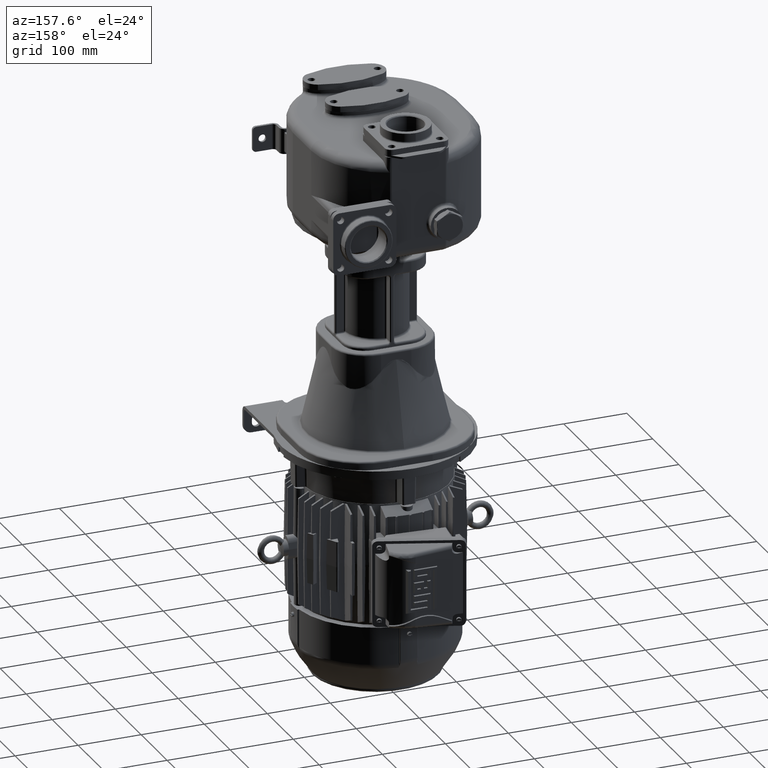
[diagram: clean part render]
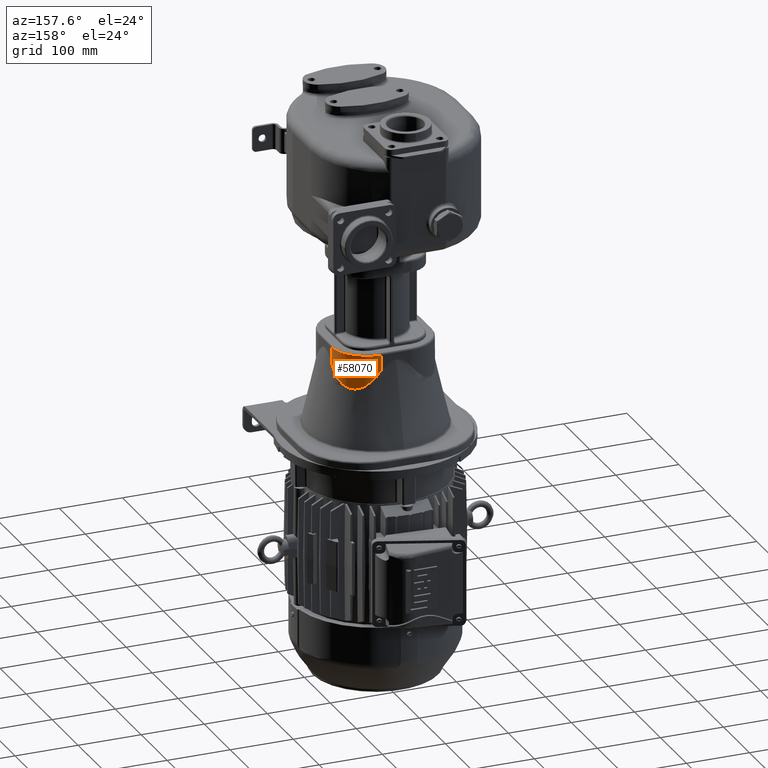
[diagram: same view with one face highlighted and labeled with its STEP entity id]
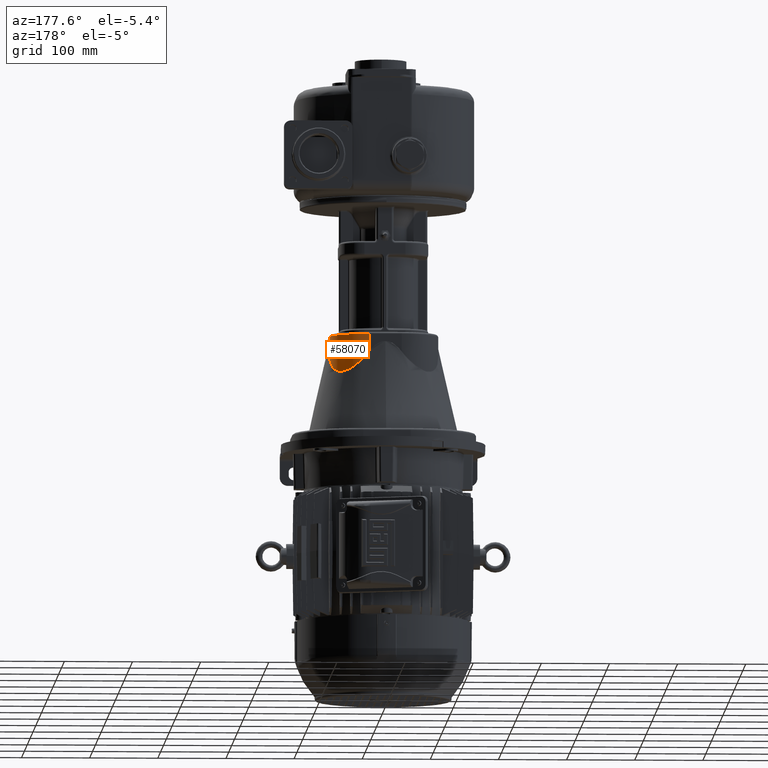
[diagram: same view with one face highlighted and labeled with its STEP entity id]
A machine part, auxiliary view. The second image highlights one B-rep face of the part: STEP entity #58070.
A second angle (auxiliary view) of the same face is appended — the face is thin or edge-on in the first view.
In plain terms, the highlighted cylindrical surface (partial cylindrical patch) has radius 56 mm, axis along (0, 0, 1).
Its self-contained STEP definition (entity closure, byte-faithful):
#3459=CARTESIAN_POINT('',(2.4E1,2.109999999998E2,-2.919786503790E2));
#3461=DIRECTION('',(0.E0,-8.758990728627E-12,-1.E0));
#3462=VECTOR('',#3461,2.547865037899E1);
#3463=CARTESIAN_POINT('',(2.4E1,2.11E2,-2.665E2));
#3464=LINE('',#3463,#3462);
#3884=CARTESIAN_POINT('',(7.999999999979E1,1.55E2,-2.919786503790E2));
#3961=DIRECTION('',(8.331750095787E-12,0.E0,1.E0));
#3962=VECTOR('',#3961,2.547865037899E1);
#3963=CARTESIAN_POINT('',(7.999999999979E1,1.55E2,-2.919786503790E2));
#3964=LINE('',#3963,#3962);
#3975=CARTESIAN_POINT('',(2.4E1,2.109999999998E2,-2.919786503790E2));
#3976=CARTESIAN_POINT('',(2.444192718825E1,2.109999999982E2,-2.925388554976E2));
#3977=CARTESIAN_POINT('',(2.531880095320E1,2.109895306220E2,-2.936346296130E2));
#3978=CARTESIAN_POINT('',(2.661067346558E1,2.109440078523E2,-2.952042158605E2));
#3979=CARTESIAN_POINT('',(2.787980533005E1,2.108701776180E2,-2.967034122667E2));
#3980=CARTESIAN_POINT('',(2.912556914812E1,2.107695289372E2,-2.981341238200E2));
#3981=CARTESIAN_POINT('',(3.034784974268E1,2.106435046495E2,-2.994987706884E2));
#3982=CARTESIAN_POINT('',(3.154671204420E1,2.104934729589E2,-3.007998331586E2));
#3983=CARTESIAN_POINT('',(3.272212616315E1,2.103207657521E2,-3.020395638423E2));
#3984=CARTESIAN_POINT('',(3.387423176919E1,2.101266450979E2,-3.032202792873E2));
#3985=CARTESIAN_POINT('',(3.500317238861E1,2.099123218606E2,-3.043441817854E2));
#3986=CARTESIAN_POINT('',(3.610916359741E1,2.096789456676E2,-3.054134358193E2));
#3987=CARTESIAN_POINT('',(3.719245894082E1,2.094276088336E2,-3.064301345448E2));
#3988=CARTESIAN_POINT('',(3.825335603859E1,2.091593448092E2,-3.073963095322E2));
#3989=CARTESIAN_POINT('',(3.929218802605E1,2.088751292350E2,-3.083139250669E2));
#3990=CARTESIAN_POINT('',(4.030931912018E1,2.085758807860E2,-3.091848771357E2));
#3991=CARTESIAN_POINT('',(4.130514262498E1,2.082624614310E2,-3.100109944060E2));
#3992=CARTESIAN_POINT('',(4.228007782978E1,2.079356770702E2,-3.107940381209E2));
#3993=CARTESIAN_POINT('',(4.323456489067E1,2.075962790716E2,-3.115357004413E2));
#3994=CARTESIAN_POINT('',(4.416906156936E1,2.072449654971E2,-3.122376045098E2));
#3995=CARTESIAN_POINT('',(4.508403963880E1,2.068823826367E2,-3.129013042097E2));
#3996=CARTESIAN_POINT('',(4.597998228254E1,2.065091263521E2,-3.135282848941E2));
#3997=CARTESIAN_POINT('',(4.685738144569E1,2.061257435530E2,-3.141199639767E2));
#3998=CARTESIAN_POINT('',(4.771673532919E1,2.057327337404E2,-3.146776915875E2));
#3999=CARTESIAN_POINT('',(4.855854600833E1,2.053305506105E2,-3.152027513132E2));
#4000=CARTESIAN_POINT('',(4.938331729565E1,2.049196036525E2,-3.156963610841E2));
#4001=CARTESIAN_POINT('',(5.019155287800E1,2.045002596953E2,-3.161596742060E2));
#4002=CARTESIAN_POINT('',(5.098375454233E1,2.040728444709E2,-3.165937803797E2));
#4003=CARTESIAN_POINT('',(5.176042021494E1,2.036376443549E2,-3.169997066635E2));
#4004=CARTESIAN_POINT('',(5.252204273447E1,2.031949077708E2,-3.173784187894E2));
#4005=CARTESIAN_POINT('',(5.326910864796E1,2.027448465884E2,-3.177308223407E2));
#4006=CARTESIAN_POINT('',(5.400209690300E1,2.022876376055E2,-3.180577638457E2));
#4007=CARTESIAN_POINT('',(5.472147771050E1,2.018234239545E2,-3.183600318854E2));
#4008=CARTESIAN_POINT('',(5.542771152937E1,2.013523164450E2,-3.186383582126E2));
#4009=CARTESIAN_POINT('',(5.612124819484E1,2.008743948164E2,-3.188934188568E2));
#4010=CARTESIAN_POINT('',(5.680252617786E1,2.003897088860E2,-3.191258351605E2));
#4011=CARTESIAN_POINT('',(5.747197145116E1,1.998982799756E2,-3.193361747957E2));
#4012=CARTESIAN_POINT('',(5.812999706346E1,1.994001018338E2,-3.195249527637E2));
#4013=CARTESIAN_POINT('',(5.877700250616E1,1.988951416623E2,-3.196926322258E2));
#4014=CARTESIAN_POINT('',(5.941337312139E1,1.983833410867E2,-3.198396253319E2));
#4015=CARTESIAN_POINT('',(6.003947955480E1,1.978646170583E2,-3.199662939385E2));
#4016=CARTESIAN_POINT('',(6.065567715910E1,1.973388627637E2,-3.200729502561E2));
#4017=CARTESIAN_POINT('',(6.126230540761E1,1.968059484980E2,-3.201598574265E2));
#4018=CARTESIAN_POINT('',(6.185968740595E1,1.962657224187E2,-3.202272300144E2));
#4019=CARTESIAN_POINT('',(6.244812937148E1,1.957180112862E2,-3.202752345886E2));
#4020=CARTESIAN_POINT('',(6.302792033870E1,1.951626209413E2,-3.203039899299E2));
#4021=CARTESIAN_POINT('',(6.359933159715E1,1.945993369643E2,-3.203135672080E2));
#4022=CARTESIAN_POINT('',(6.416261585695E1,1.940279255747E2,-3.203039901120E2));
#4023=CARTESIAN_POINT('',(6.471800678179E1,1.934481341477E2,-3.202752349096E2));
#4024=CARTESIAN_POINT('',(6.526571856876E1,1.928596916082E2,-3.202272304287E2));
#4025=CARTESIAN_POINT('',(6.580594522332E1,1.922623090867E2,-3.201598579038E2));
#4026=CARTESIAN_POINT('',(6.633886000707E1,1.916556803487E2,-3.200729507657E2));
#4027=CARTESIAN_POINT('',(6.686461487684E1,1.910394821557E2,-3.199662944331E2));
#4028=CARTESIAN_POINT('',(6.738333946488E1,1.904133751144E2,-3.198396257728E2));
#4029=CARTESIAN_POINT('',(6.789514055792E1,1.897770039059E2,-3.196926325736E2));
#4030=CARTESIAN_POINT('',(6.840010115392E1,1.891299979526E2,-3.195249530089E2));
#4031=CARTESIAN_POINT('',(6.889827963739E1,1.884719719095E2,-3.193361749373E2));
#4032=CARTESIAN_POINT('',(6.938970890472E1,1.878025261571E2,-3.191258351588E2));
#4033=CARTESIAN_POINT('',(6.987439518235E1,1.871212476777E2,-3.188934186776E2));
#4034=CARTESIAN_POINT('',(7.035231715562E1,1.864277104866E2,-3.186383578198E2));
#4035=CARTESIAN_POINT('',(7.082342493577E1,1.857214762193E2,-3.183600312811E2));
#4036=CARTESIAN_POINT('',(7.128763880889E1,1.850020950105E2,-3.180577630284E2));
#4037=CARTESIAN_POINT('',(7.174484800396E1,1.842691063435E2,-3.177308212871E2));
#4038=CARTESIAN_POINT('',(7.219490939387E1,1.835220399968E2,-3.173784174670E2));
#4039=CARTESIAN_POINT('',(7.263764615721E1,1.827604170616E2,-3.169997050582E2));
#4040=CARTESIAN_POINT('',(7.307284640038E1,1.819837510370E2,-3.165937785054E2));
#4041=CARTESIAN_POINT('',(7.350026170495E1,1.811915490829E2,-3.161596720803E2));
#4042=CARTESIAN_POINT('',(7.391960571461E1,1.803833132430E2,-3.156963587114E2));
#4043=CARTESIAN_POINT('',(7.433055268934E1,1.795585417497E2,-3.152027487116E2));
#4044=CARTESIAN_POINT('',(7.473273578799E1,1.787167309498E2,-3.146776888006E2));
#4045=CARTESIAN_POINT('',(7.512574553600E1,1.778573770103E2,-3.141199610418E2));
#4046=CARTESIAN_POINT('',(7.550912824897E1,1.769799778365E2,-3.135282818387E2));
#4047=CARTESIAN_POINT('',(7.588238441829E1,1.760840352524E2,-3.129013010827E2));
#4048=CARTESIAN_POINT('',(7.624496712208E1,1.751690573556E2,-3.122376013965E2));
#4049=CARTESIAN_POINT('',(7.659628051511E1,1.742345609379E2,-3.115356974186E2));
#4050=CARTESIAN_POINT('',(7.693567835333E1,1.732800741098E2,-3.107940351799E2));
#4051=CARTESIAN_POINT('',(7.726246255501E1,1.723051391558E2,-3.100109915693E2));
#4052=CARTESIAN_POINT('',(7.757588164889E1,1.713093162698E2,-3.091848747276E2));
#4053=CARTESIAN_POINT('',(7.787512989501E1,1.702921856946E2,-3.083139230366E2));
#4054=CARTESIAN_POINT('',(7.815934543854E1,1.692533536538E2,-3.073963073938E2));
#4055=CARTESIAN_POINT('',(7.842760946940E1,1.681924563198E2,-3.064301321233E2));
#4056=CARTESIAN_POINT('',(7.867894622417E1,1.671091610779E2,-3.054134334170E2));
#4057=CARTESIAN_POINT('',(7.891232234805E1,1.660031699594E2,-3.043441794029E2));
#4058=CARTESIAN_POINT('',(7.912664558274E1,1.648742290742E2,-3.032202765675E2));
#4059=CARTESIAN_POINT('',(7.932076619941E1,1.637221233213E2,-3.020395608849E2));
#4060=CARTESIAN_POINT('',(7.949347331133E1,1.625467094415E2,-3.007998303750E2));
#4061=CARTESIAN_POINT('',(7.964350495048E1,1.613478471203E2,-2.994987678022E2));
#4062=CARTESIAN_POINT('',(7.976952921736E1,1.601255661342E2,-2.981341204106E2));
#4063=CARTESIAN_POINT('',(7.987017781993E1,1.588798023319E2,-2.967034087665E2));
#4064=CARTESIAN_POINT('',(7.994400792287E1,1.576106717753E2,-2.952042138231E2));
#4065=CARTESIAN_POINT('',(7.998953063878E1,1.563187999589E2,-2.936346283763E2));
#4066=CARTESIAN_POINT('',(8.000000000078E1,1.554419268555E2,-2.925388550800E2));
#4067=CARTESIAN_POINT('',(7.999999999979E1,1.55E2,-2.919786503790E2));
#4069=CARTESIAN_POINT('',(2.4E1,1.55E2,-2.665E2));
#4070=DIRECTION('',(0.E0,0.E0,1.E0));
#4071=DIRECTION('',(1.E0,0.E0,0.E0));
#4072=AXIS2_PLACEMENT_3D('',#4069,#4070,#4071);
#45866=CARTESIAN_POINT('',(2.4E1,2.11E2,-2.665E2));
#45867=VERTEX_POINT('',#45866);
#45870=CARTESIAN_POINT('',(8.E1,1.55E2,-2.665E2));
#45871=VERTEX_POINT('',#45870);
#45926=VERTEX_POINT('',#3459);
#45928=VERTEX_POINT('',#3884);
#58058=CARTESIAN_POINT('',(2.4E1,1.55E2,-2.645E2));
#58059=DIRECTION('',(0.E0,0.E0,1.E0));
#58060=DIRECTION('',(-1.E0,0.E0,0.E0));
#58061=AXIS2_PLACEMENT_3D('',#58058,#58059,#58060);
#58062=CYLINDRICAL_SURFACE('',#58061,5.6E1);
#58063=ORIENTED_EDGE('',*,*,#56035,.T.);
#58064=ORIENTED_EDGE('',*,*,#58048,.T.);
#58065=ORIENTED_EDGE('',*,*,#57440,.T.);
#58067=ORIENTED_EDGE('',*,*,#58066,.T.);
#58068=EDGE_LOOP('',(#58063,#58064,#58065,#58067));
#58069=FACE_OUTER_BOUND('',#58068,.F.);
#58070=ADVANCED_FACE('',(#58069),#58062,.T.);
#4068=B_SPLINE_CURVE_WITH_KNOTS('',3,(#3975,#3976,#3977,#3978,#3979,#3980,#3981,
#3982,#3983,#3984,#3985,#3986,#3987,#3988,#3989,#3990,#3991,#3992,#3993,#3994,
#3995,#3996,#3997,#3998,#3999,#4000,#4001,#4002,#4003,#4004,#4005,#4006,#4007,
#4008,#4009,#4010,#4011,#4012,#4013,#4014,#4015,#4016,#4017,#4018,#4019,#4020,
#4021,#4022,#4023,#4024,#4025,#4026,#4027,#4028,#4029,#4030,#4031,#4032,#4033,
#4034,#4035,#4036,#4037,#4038,#4039,#4040,#4041,#4042,#4043,#4044,#4045,#4046,
#4047,#4048,#4049,#4050,#4051,#4052,#4053,#4054,#4055,#4056,#4057,#4058,#4059,
#4060,#4061,#4062,#4063,#4064,#4065,#4066,#4067),.UNSPECIFIED.,.F.,.F.,(4,1,1,1,
1,1,1,1,1,1,1,1,1,1,1,1,1,1,1,1,1,1,1,1,1,1,1,1,1,1,1,1,1,1,1,1,1,1,1,1,1,1,1,1,
1,1,1,1,1,1,1,1,1,1,1,1,1,1,1,1,1,1,1,1,1,1,1,1,1,1,1,1,1,1,1,1,1,1,1,1,1,1,1,1,
1,1,1,1,1,1,4),(0.E0,1.111111111111E-2,2.222222222222E-2,3.333333333333E-2,
4.444444444444E-2,5.555555555556E-2,6.666666666667E-2,7.777777777778E-2,
8.888888888889E-2,1.E-1,1.111111111111E-1,1.222222222222E-1,1.333333333333E-1,
1.444444444444E-1,1.555555555556E-1,1.666666666667E-1,1.777777777778E-1,
1.888888888889E-1,2.E-1,2.111111111111E-1,2.222222222222E-1,2.333333333333E-1,
2.444444444444E-1,2.555555555556E-1,2.666666666667E-1,2.777777777778E-1,
2.888888888889E-1,3.E-1,3.111111111111E-1,3.222222222222E-1,3.333333333333E-1,
3.444444444444E-1,3.555555555556E-1,3.666666666667E-1,3.777777777778E-1,
3.888888888889E-1,4.E-1,4.111111111111E-1,4.222222222222E-1,4.333333333333E-1,
4.444444444444E-1,4.555555555556E-1,4.666666666667E-1,4.777777777778E-1,
4.888888888889E-1,5.E-1,5.111111111111E-1,5.222222222222E-1,5.333333333333E-1,
5.444444444444E-1,5.555555555556E-1,5.666666666667E-1,5.777777777778E-1,
5.888888888889E-1,6.E-1,6.111111111111E-1,6.222222222222E-1,6.333333333333E-1,
6.444444444444E-1,6.555555555556E-1,6.666666666667E-1,6.777777777778E-1,
6.888888888889E-1,7.E-1,7.111111111111E-1,7.222222222222E-1,7.333333333333E-1,
7.444444444444E-1,7.555555555556E-1,7.666666666667E-1,7.777777777778E-1,
7.888888888889E-1,8.E-1,8.111111111111E-1,8.222222222222E-1,8.333333333333E-1,
8.444444444444E-1,8.555555555556E-1,8.666666666667E-1,8.777777777778E-1,
8.888888888889E-1,9.E-1,9.111111111111E-1,9.222222222222E-1,9.333333333333E-1,
9.444444444444E-1,9.555555555556E-1,9.666666666667E-1,9.777777777778E-1,
9.888888888889E-1,1.E0),.UNSPECIFIED.);
#4073=CIRCLE('',#4072,5.6E1);
#56035=EDGE_CURVE('',#45867,#45926,#3464,.T.);
#57440=EDGE_CURVE('',#45928,#45871,#3964,.T.);
#58048=EDGE_CURVE('',#45926,#45928,#4068,.T.);
#58066=EDGE_CURVE('',#45871,#45867,#4073,.T.);